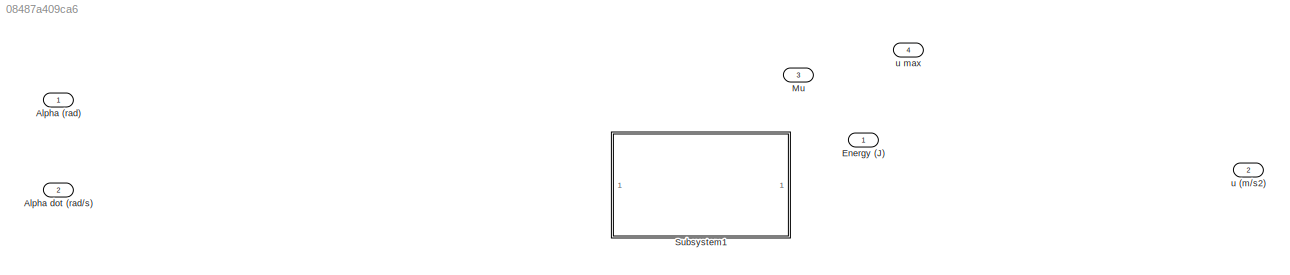
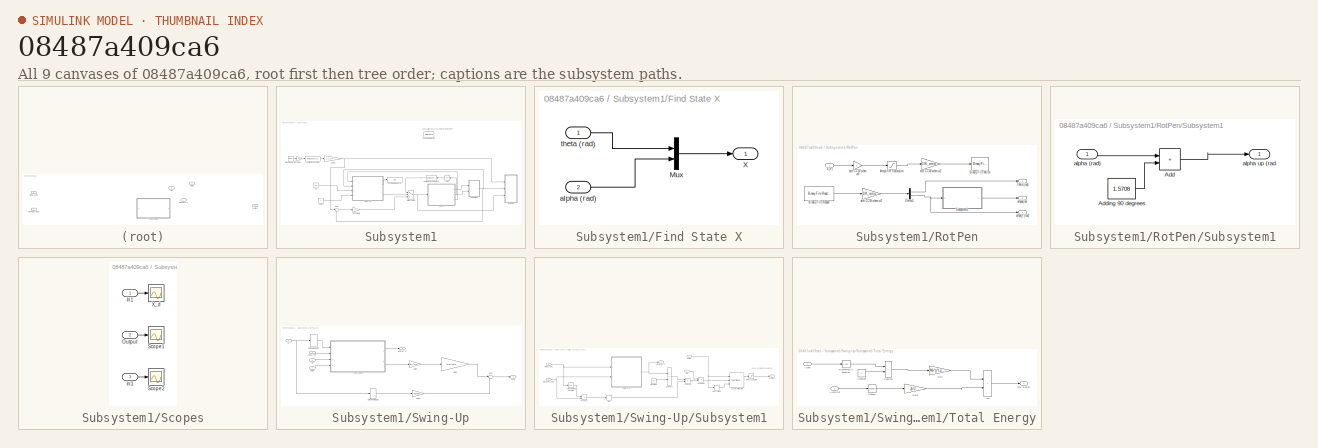
[diagram: thumbnail index - all 9 canvases of the model, root first then tree order]
MODEL slx_08487a409ca6
KIND model
CONFIG AbsTol = auto
CONFIG EnableMultiTasking = off
CONFIG FixedStep = auto
CONFIG MaxStep = auto
CONFIG MinStep = auto
CONFIG RelTol = 1e-3
CONFIG SampleTimeConstraint = Unconstrained
CONFIG Solver = VariableStepAuto
CONFIG SolverName = VariableStepAuto
CONFIG StartTime = 0.0
CONFIG StopTime = 10.0
BLOCK [Inport] Alpha (rad)
BLOCK [Inport] Alpha dot (rad//s)
  Port = 2
BLOCK [Outport] Energy (J)
BLOCK [Inport] Mu
  Port = 3
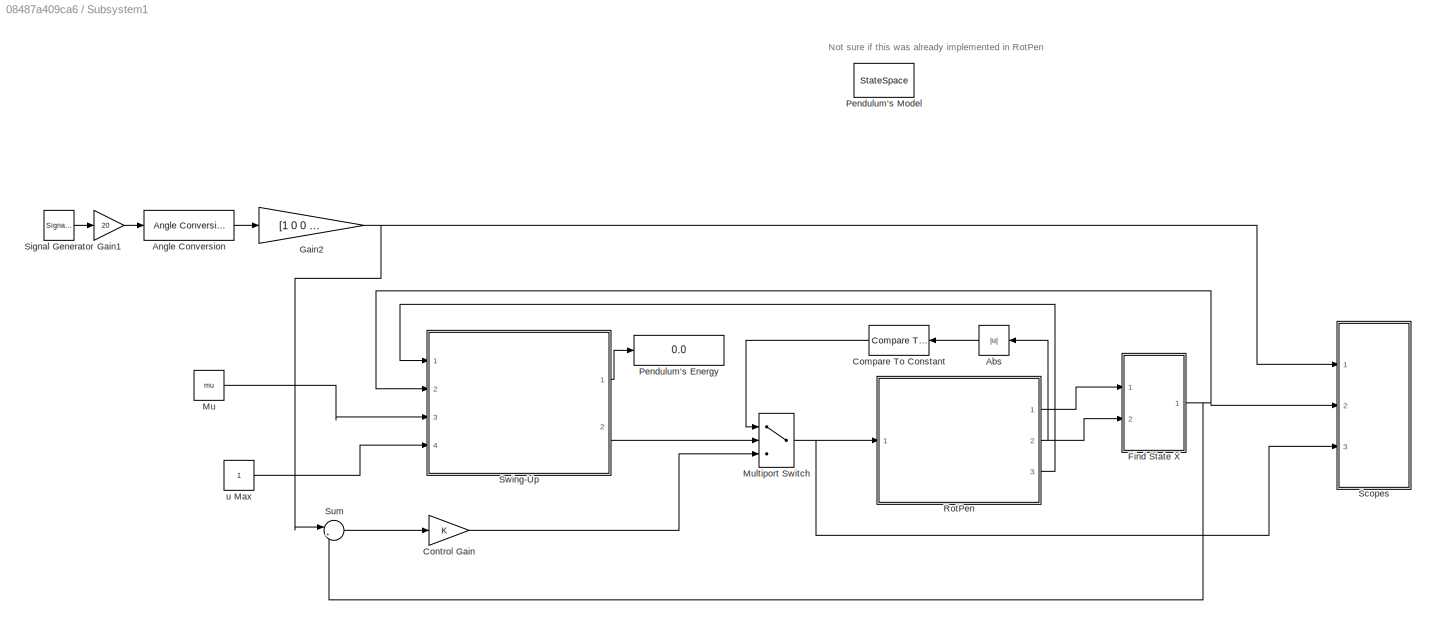
BLOCK [SubSystem] Subsystem1
  Ports = []
  RequestExecContextInheritance = off
BLOCK [Abs] Subsystem1/Abs
  SaturateOnIntegerOverflow = off
BLOCK [Reference] Subsystem1/Angle Conversion  REF=aerolibconvert2/Angle Conversion
  Ports = [1, 1]
  SourceBlock = aerolibconvert2/Angle Conversion
  SourceProductBaseCode = AE
  SourceType = Angle Conversion
BLOCK [Reference] Subsystem1/Compare To Constant  REF=simulink/Logic and Bit
Operations/Compare
To Constant
  Ports = [1, 1]
  SourceBlock = simulink/Logic and Bit\nOperations/Compare\nTo Constant
  SourceProductBaseCode = SL
  SourceType = Compare To Constant
BLOCK [Gain] Subsystem1/Control Gain
  Gain = K
  Multiplication = Matrix(K*u)
BLOCK [SubSystem] Subsystem1/Find State X
  Ports = [2, 1]
  RequestExecContextInheritance = off
BLOCK [Mux] Subsystem1/Find State X/Mux
  DisplayOption = bar
  Inputs = 2
  Ports = [2, 1]
BLOCK [Outport] Subsystem1/Find State X/X
BLOCK [Inport] Subsystem1/Find State X/alpha (rad)
  Port = 2
BLOCK [Inport] Subsystem1/Find State X/theta (rad)
BLOCK [Gain] Subsystem1/Gain1
  Gain = 20
BLOCK [Gain] Subsystem1/Gain2
  Gain = [1 0 0 0]
BLOCK [Constant] Subsystem1/Mu
  Value = mu
BLOCK [MultiPortSwitch] Subsystem1/Multiport Switch
  InputSameDT = off
  Inputs = 2
  Ports = [3, 1]
  SaturateOnIntegerOverflow = off
BLOCK [Display] Subsystem1/Pendulum's Energy
  Decimation = 1
  Ports = [1]
BLOCK [StateSpace] Subsystem1/Pendulum's Model
  A = A
  B = B
  C = C
  D = D
  InitialCondition = 0
  Ports = [1, 1]
BLOCK [SubSystem] Subsystem1/RotPen
  Ports = [1, 3]
  RequestExecContextInheritance = off
BLOCK [Saturate] Subsystem1/RotPen/Amplifier Saturation
BLOCK [Reference] Subsystem1/RotPen/Binary File Reader  REF=dspsrcs4/Binary File Reader
  Ports = [0, 1]
  SourceBlock = dspsrcs4/Binary File Reader
  SourceProductBaseCode = DS
  SourceType = dsp.simulink.BinaryFileReader
BLOCK [Reference] Subsystem1/RotPen/Binary File Writer  REF=dspsnks4/Binary File Writer
  Ports = [1]
  SourceBlock = dspsnks4/Binary File Writer
  SourceProductBaseCode = DS
  SourceType = dsp.BinaryFileWriter
BLOCK [Demux] Subsystem1/RotPen/Demux1
  Outputs = 2
  Ports = [1, 2]
BLOCK [SubSystem] Subsystem1/RotPen/Subsystem1
  Ports = [1, 1]
  RequestExecContextInheritance = off
BLOCK [Sum] Subsystem1/RotPen/Subsystem1/Add
  IconShape = rectangular
  Ports = [2, 1]
BLOCK [Constant] Subsystem1/RotPen/Subsystem1/Adding 90 degrees
  Value = 1.5708
BLOCK [Inport] Subsystem1/RotPen/Subsystem1/alpha (rad)
BLOCK [Outport] Subsystem1/RotPen/Subsystem1/alpha up (rad
BLOCK [Outport] Subsystem1/RotPen/Theta (rad)
BLOCK [Outport] Subsystem1/RotPen/alhpa(rad
  Port = 2
BLOCK [Outport] Subsystem1/RotPen/alhpa_f (rad)
  Port = 3
BLOCK [Gain] Subsystem1/RotPen/arm CCW when u>0
  Gain = 0
BLOCK [Gain] Subsystem1/RotPen/arm CCW when u>1
  Gain = 1/K_amp
BLOCK [Gain] Subsystem1/RotPen/arm CCW when u>2
  Gain = 1/K_amp
BLOCK [Inport] Subsystem1/RotPen/u (V)
BLOCK [SubSystem] Subsystem1/Scopes
  Ports = [3]
  RequestExecContextInheritance = off
BLOCK [Inport] Subsystem1/Scopes/In1
BLOCK [Inport] Subsystem1/Scopes/In3
  Port = 3
BLOCK [Inport] Subsystem1/Scopes/Output
  Port = 2
BLOCK [Scope] Subsystem1/Scopes/Scope1
  Floating = off
  NumInputPorts = 1
  Ports = [1]
  ScopeSpecificationString = Simulink.scopes.TimeScopeBlockCfg('CurrentConfiguration', extmgr.ConfigurationSet(extmgr.Configuration('Core','General UI',true),extmgr.Configuration('Core','Source UI',true),extmgr.Configuration('Sources','WiredSimulink',true,'DataLoggingVariableName','ScopeData1'),extmgr.Configuration('Visuals','Time Domain',true),extmgr.Configuration('Tools','Plot Navigation',true),extmgr.Configuration('Tools',...<+40ch>
BLOCK [Scope] Subsystem1/Scopes/Scope2
  Floating = off
  NumInputPorts = 1
  Ports = [1]
  ScopeSpecificationString = Simulink.scopes.TimeScopeBlockCfg('CurrentConfiguration', extmgr.ConfigurationSet(extmgr.Configuration('Core','General UI',true),extmgr.Configuration('Core','Source UI',true),extmgr.Configuration('Sources','WiredSimulink',true,'DataLoggingVariableName','ScopeData2'),extmgr.Configuration('Visuals','Time Domain',true),extmgr.Configuration('Tools','Plot Navigation',true),extmgr.Configuration('Tools',...<+40ch>
BLOCK [Scope] Subsystem1/Scopes/X_d
  Floating = off
  NumInputPorts = 1
  Ports = [1]
  ScopeSpecificationString = Simulink.scopes.TimeScopeBlockCfg('CurrentConfiguration', extmgr.ConfigurationSet(extmgr.Configuration('Core','General UI',true),extmgr.Configuration('Core','Source UI',true),extmgr.Configuration('Sources','WiredSimulink',true),extmgr.Configuration('Visuals','Time Domain',true),extmgr.Configuration('Tools','Plot Navigation',true),extmgr.Configuration('Tools','Measurements',true,'Version','2020a'))...<+19ch>
BLOCK [SignalGenerator] Subsystem1/Signal Generator
  Ports = [0, 1]
  Units = rad/sec
BLOCK [Sum] Subsystem1/Sum
  Inputs = |+-
  Ports = [2, 1]
BLOCK [SubSystem] Subsystem1/Swing-Up
  Ports = [4, 2]
  RequestExecContextInheritance = off
BLOCK [Inport] Subsystem1/Swing-Up/Alpha (rad)
BLOCK [Outport] Subsystem1/Swing-Up/Energy (J)
BLOCK [Gain] Subsystem1/Swing-Up/Gain
  Gain = Mr^2*Lr
BLOCK [Gain] Subsystem1/Swing-Up/Gain1
  Gain = Rm/(eta_g*Kg*eta_m*kt)
BLOCK [Gain] Subsystem1/Swing-Up/Gain2
  Gain = Kg*km
BLOCK [Inport] Subsystem1/Swing-Up/Mu
  Port = 3
BLOCK [Selector] Subsystem1/Swing-Up/Select Alpha dot
  IndexOptions = Index vector (dialog)
  Indices = [1 3]
  InputPortWidth = 3
  OutputSizes = 1
  Ports = [1, 1]
BLOCK [Selector] Subsystem1/Swing-Up/Select Theta dot1
  IndexOptions = Index vector (dialog)
  Indices = [1 3]
  InputPortWidth = 3
  OutputSizes = 1
  Ports = [1, 1]
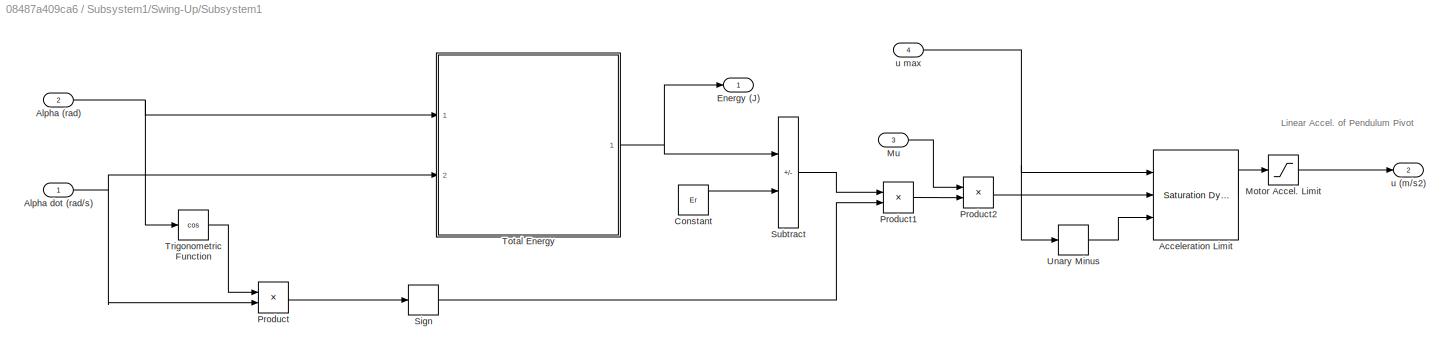
BLOCK [SubSystem] Subsystem1/Swing-Up/Subsystem1
  Ports = [4, 2]
  RequestExecContextInheritance = off
BLOCK [Reference] Subsystem1/Swing-Up/Subsystem1/Acceleration Limit  REF=simulink/Discontinuities/Saturation
Dynamic
  Ports = [3, 1]
  SourceBlock = simulink/Discontinuities/Saturation\nDynamic
  SourceProductBaseCode = SL
  SourceType = Saturation Dynamic
BLOCK [Inport] Subsystem1/Swing-Up/Subsystem1/Alpha (rad)
  Port = 2
BLOCK [Inport] Subsystem1/Swing-Up/Subsystem1/Alpha dot (rad//s)
BLOCK [Constant] Subsystem1/Swing-Up/Subsystem1/Constant
  Value = Er
BLOCK [Outport] Subsystem1/Swing-Up/Subsystem1/Energy (J)
BLOCK [Saturate] Subsystem1/Swing-Up/Subsystem1/Motor Accel. Limit
BLOCK [Inport] Subsystem1/Swing-Up/Subsystem1/Mu
  Port = 3
BLOCK [Product] Subsystem1/Swing-Up/Subsystem1/Product
  Ports = [2, 1]
BLOCK [Product] Subsystem1/Swing-Up/Subsystem1/Product1
  Ports = [2, 1]
BLOCK [Product] Subsystem1/Swing-Up/Subsystem1/Product2
  Ports = [2, 1]
BLOCK [Signum] Subsystem1/Swing-Up/Subsystem1/Sign
BLOCK [Sum] Subsystem1/Swing-Up/Subsystem1/Subtract
  IconShape = rectangular
  Inputs = +-
  Ports = [2, 1]
BLOCK [SubSystem] Subsystem1/Swing-Up/Subsystem1/Total Energy
  Ports = [2, 1]
  RequestExecContextInheritance = off
BLOCK [Sum] Subsystem1/Swing-Up/Subsystem1/Total Energy/Add
  IconShape = rectangular
  Ports = [2, 1]
BLOCK [Inport] Subsystem1/Swing-Up/Subsystem1/Total Energy/Alpha 
BLOCK [Inport] Subsystem1/Swing-Up/Subsystem1/Total Energy/Alpha Dot
  Port = 2
BLOCK [Constant] Subsystem1/Swing-Up/Subsystem1/Total Energy/Constant
BLOCK [Gain] Subsystem1/Swing-Up/Subsystem1/Total Energy/Gain
  Gain = Mp*g*Lp/2
BLOCK [Gain] Subsystem1/Swing-Up/Subsystem1/Total Energy/Gain1
  Gain = Jp/2
BLOCK [Math] Subsystem1/Swing-Up/Subsystem1/Total Energy/Square
  Operator = square
  Ports = [1, 1]
BLOCK [Sum] Subsystem1/Swing-Up/Subsystem1/Total Energy/Subtract
  IconShape = rectangular
  Inputs = -+
  Ports = [2, 1]
BLOCK [Outport] Subsystem1/Swing-Up/Subsystem1/Total Energy/Total Energy
BLOCK [Trigonometry] Subsystem1/Swing-Up/Subsystem1/Total Energy/Trigonometric Function
  Operator = cos
  Ports = [1, 1]
BLOCK [Trigonometry] Subsystem1/Swing-Up/Subsystem1/Trigonometric Function
  Operator = cos
  Ports = [1, 1]
BLOCK [UnaryMinus] Subsystem1/Swing-Up/Subsystem1/Unary Minus
BLOCK [Outport] Subsystem1/Swing-Up/Subsystem1/u (m//s2)
  Port = 2
BLOCK [Inport] Subsystem1/Swing-Up/Subsystem1/u max
  Port = 4
BLOCK [Sum] Subsystem1/Swing-Up/Sum
  Inputs = |++
  Ports = [2, 1]
BLOCK [Inport] Subsystem1/Swing-Up/X
  Port = 2
BLOCK [Inport] Subsystem1/Swing-Up/u max
  Port = 4
BLOCK [Outport] Subsystem1/Swing-Up/u(V)
  Port = 2
BLOCK [Constant] Subsystem1/u Max
BLOCK [Outport] u (m//s2)
  Port = 2
BLOCK [Inport] u max
  Port = 4
ANNOTATION Subsystem1: Not sure if this was already implemented in RotPen
ANNOTATION Subsystem1/Swing-Up/Subsystem1: Linear Accel. of Pendulum Pivot
LINE Subsystem1/Abs:1 -> Subsystem1/Compare To Constant:1
LINE Subsystem1/Angle Conversion:1 -> Subsystem1/Gain2:1
LINE Subsystem1/Compare To Constant:1 -> Subsystem1/Multiport Switch:1
LINE Subsystem1/Control Gain:1 -> Subsystem1/Multiport Switch:3
LINE Subsystem1/Find State X/Mux:1 -> Subsystem1/Find State X/X:1
LINE Subsystem1/Find State X/alpha (rad):1 -> Subsystem1/Find State X/Mux:2
LINE Subsystem1/Find State X/theta (rad):1 -> Subsystem1/Find State X/Mux:1
NET Subsystem1/Find State X:1 -> Subsystem1/Scopes:2, Subsystem1/Sum:2, Subsystem1/Swing-Up:2
LINE Subsystem1/Gain1:1 -> Subsystem1/Angle Conversion:1
NET Subsystem1/Gain2:1 -> Subsystem1/Scopes:1, Subsystem1/Sum:1
LINE Subsystem1/Mu:1 -> Subsystem1/Swing-Up:3
NET Subsystem1/Multiport Switch:1 -> Subsystem1/RotPen:1, Subsystem1/Scopes:3
LINE Subsystem1/RotPen/Amplifier Saturation:1 -> Subsystem1/RotPen/arm CCW when u>1:1
LINE Subsystem1/RotPen/Binary File Reader:1 -> Subsystem1/RotPen/arm CCW when u>2:1
LINE Subsystem1/RotPen/Demux1:1 -> Subsystem1/RotPen/Theta (rad):1
NET Subsystem1/RotPen/Demux1:2 -> Subsystem1/RotPen/Subsystem1:1, Subsystem1/RotPen/alhpa_f (rad):1
LINE Subsystem1/RotPen/Subsystem1/Add:1 -> Subsystem1/RotPen/Subsystem1/alpha up (rad:1
LINE Subsystem1/RotPen/Subsystem1/Adding 90 degrees:1 -> Subsystem1/RotPen/Subsystem1/Add:2
LINE Subsystem1/RotPen/Subsystem1/alpha (rad):1 -> Subsystem1/RotPen/Subsystem1/Add:1
LINE Subsystem1/RotPen/Subsystem1:1 -> Subsystem1/RotPen/alhpa(rad:1
LINE Subsystem1/RotPen/arm CCW when u>0:1 -> Subsystem1/RotPen/Amplifier Saturation:1
LINE Subsystem1/RotPen/arm CCW when u>1:1 -> Subsystem1/RotPen/Binary File Writer:1
LINE Subsystem1/RotPen/arm CCW when u>2:1 -> Subsystem1/RotPen/Demux1:1
LINE Subsystem1/RotPen/u (V):1 -> Subsystem1/RotPen/arm CCW when u>0:1
LINE Subsystem1/RotPen:1 -> Subsystem1/Find State X:1
NET Subsystem1/RotPen:2 -> Subsystem1/Abs:1, Subsystem1/Find State X:2
LINE Subsystem1/RotPen:3 -> Subsystem1/Swing-Up:1
LINE Subsystem1/Scopes/In1:1 -> Subsystem1/Scopes/X_d:1
LINE Subsystem1/Scopes/In3:1 -> Subsystem1/Scopes/Scope2:1
LINE Subsystem1/Scopes/Output:1 -> Subsystem1/Scopes/Scope1:1
LINE Subsystem1/Signal Generator:1 -> Subsystem1/Gain1:1
LINE Subsystem1/Sum:1 -> Subsystem1/Control Gain:1
LINE Subsystem1/Swing-Up/Alpha (rad):1 -> Subsystem1/Swing-Up/Subsystem1:2
LINE Subsystem1/Swing-Up/Gain1:1 -> Subsystem1/Swing-Up/Sum:1
LINE Subsystem1/Swing-Up/Gain2:1 -> Subsystem1/Swing-Up/Sum:2
LINE Subsystem1/Swing-Up/Gain:1 -> Subsystem1/Swing-Up/Gain1:1
LINE Subsystem1/Swing-Up/Mu:1 -> Subsystem1/Swing-Up/Subsystem1:3
LINE Subsystem1/Swing-Up/Select Alpha dot:1 -> Subsystem1/Swing-Up/Subsystem1:1
LINE Subsystem1/Swing-Up/Select Theta dot1:1 -> Subsystem1/Swing-Up/Gain2:1
LINE Subsystem1/Swing-Up/Subsystem1/Acceleration Limit:1 -> Subsystem1/Swing-Up/Subsystem1/Motor Accel. Limit:1
NET Subsystem1/Swing-Up/Subsystem1/Alpha (rad):1 -> Subsystem1/Swing-Up/Subsystem1/Total Energy:1, Subsystem1/Swing-Up/Subsystem1/Trigonometric Function:1
NET Subsystem1/Swing-Up/Subsystem1/Alpha dot (rad//s):1 -> Subsystem1/Swing-Up/Subsystem1/Product:2, Subsystem1/Swing-Up/Subsystem1/Total Energy:2
LINE Subsystem1/Swing-Up/Subsystem1/Constant:1 -> Subsystem1/Swing-Up/Subsystem1/Subtract:2
LINE Subsystem1/Swing-Up/Subsystem1/Motor Accel. Limit:1 -> Subsystem1/Swing-Up/Subsystem1/u (m//s2):1
LINE Subsystem1/Swing-Up/Subsystem1/Mu:1 -> Subsystem1/Swing-Up/Subsystem1/Product2:1
LINE Subsystem1/Swing-Up/Subsystem1/Product1:1 -> Subsystem1/Swing-Up/Subsystem1/Product2:2
LINE Subsystem1/Swing-Up/Subsystem1/Product2:1 -> Subsystem1/Swing-Up/Subsystem1/Acceleration Limit:2
LINE Subsystem1/Swing-Up/Subsystem1/Product:1 -> Subsystem1/Swing-Up/Subsystem1/Sign:1
LINE Subsystem1/Swing-Up/Subsystem1/Sign:1 -> Subsystem1/Swing-Up/Subsystem1/Product1:2
LINE Subsystem1/Swing-Up/Subsystem1/Subtract:1 -> Subsystem1/Swing-Up/Subsystem1/Product1:1
LINE Subsystem1/Swing-Up/Subsystem1/Total Energy/Add:1 -> Subsystem1/Swing-Up/Subsystem1/Total Energy/Total Energy:1
LINE Subsystem1/Swing-Up/Subsystem1/Total Energy/Alpha :1 -> Subsystem1/Swing-Up/Subsystem1/Total Energy/Trigonometric Function:1
LINE Subsystem1/Swing-Up/Subsystem1/Total Energy/Alpha Dot:1 -> Subsystem1/Swing-Up/Subsystem1/Total Energy/Square:1
LINE Subsystem1/Swing-Up/Subsystem1/Total Energy/Constant:1 -> Subsystem1/Swing-Up/Subsystem1/Total Energy/Subtract:2
LINE Subsystem1/Swing-Up/Subsystem1/Total Energy/Gain1:1 -> Subsystem1/Swing-Up/Subsystem1/Total Energy/Add:2
LINE Subsystem1/Swing-Up/Subsystem1/Total Energy/Gain:1 -> Subsystem1/Swing-Up/Subsystem1/Total Energy/Add:1
LINE Subsystem1/Swing-Up/Subsystem1/Total Energy/Square:1 -> Subsystem1/Swing-Up/Subsystem1/Total Energy/Gain1:1
LINE Subsystem1/Swing-Up/Subsystem1/Total Energy/Subtract:1 -> Subsystem1/Swing-Up/Subsystem1/Total Energy/Gain:1
LINE Subsystem1/Swing-Up/Subsystem1/Total Energy/Trigonometric Function:1 -> Subsystem1/Swing-Up/Subsystem1/Total Energy/Subtract:1
NET Subsystem1/Swing-Up/Subsystem1/Total Energy:1 -> Subsystem1/Swing-Up/Subsystem1/Energy (J):1, Subsystem1/Swing-Up/Subsystem1/Subtract:1
LINE Subsystem1/Swing-Up/Subsystem1/Trigonometric Function:1 -> Subsystem1/Swing-Up/Subsystem1/Product:1
LINE Subsystem1/Swing-Up/Subsystem1/Unary Minus:1 -> Subsystem1/Swing-Up/Subsystem1/Acceleration Limit:3
NET Subsystem1/Swing-Up/Subsystem1/u max:1 -> Subsystem1/Swing-Up/Subsystem1/Acceleration Limit:1, Subsystem1/Swing-Up/Subsystem1/Unary Minus:1
LINE Subsystem1/Swing-Up/Subsystem1:1 -> Subsystem1/Swing-Up/Energy (J):1
LINE Subsystem1/Swing-Up/Subsystem1:2 -> Subsystem1/Swing-Up/Gain:1
LINE Subsystem1/Swing-Up/Sum:1 -> Subsystem1/Swing-Up/u(V):1
NET Subsystem1/Swing-Up/X:1 -> Subsystem1/Swing-Up/Select Alpha dot:1, Subsystem1/Swing-Up/Select Theta dot1:1
LINE Subsystem1/Swing-Up/u max:1 -> Subsystem1/Swing-Up/Subsystem1:4
LINE Subsystem1/Swing-Up:1 -> Subsystem1/Pendulum's Energy:1
LINE Subsystem1/Swing-Up:2 -> Subsystem1/Multiport Switch:2
LINE Subsystem1/u Max:1 -> Subsystem1/Swing-Up:4
note: NET lines group one-source signal fan-out (src -> all destinations, sorted); 1:1 wires keep LINE
